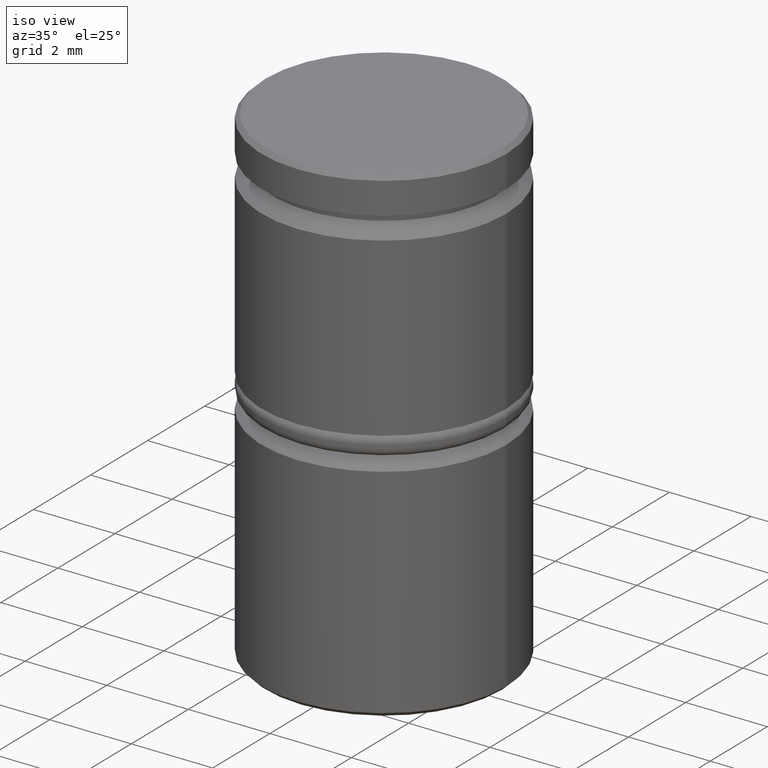
[diagram: clean part render]
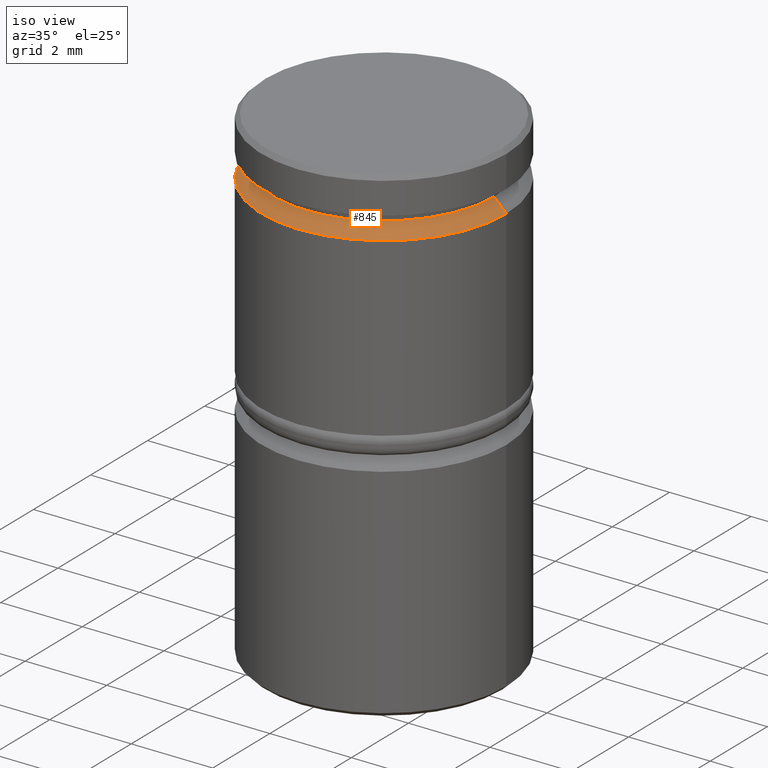
[diagram: same view with one face highlighted and labeled with its STEP entity id]
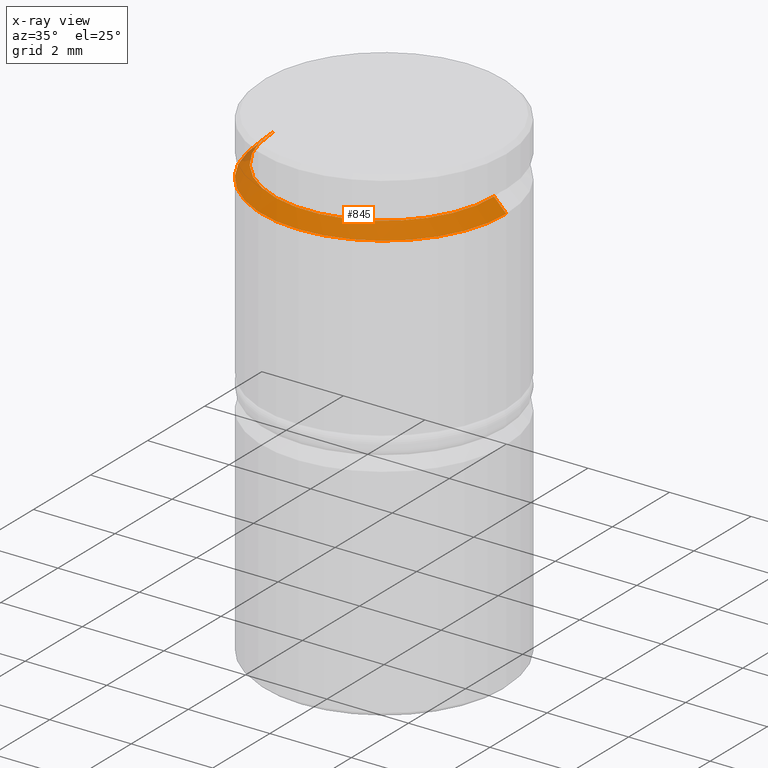
[diagram: x-ray of the same camera — body ghosted, the highlighted face saturated]
A machine part, iso view. The second image highlights one B-rep face of the part: STEP entity #845.
The next image is the same camera in x-ray: the body ghosted, the highlighted face saturated — about 2% of this face is hidden behind the body in this view.
In plain terms, the highlighted conical surface has half-angle 45 deg.
Its self-contained STEP definition (entity closure, byte-faithful):
#62 = CARTESIAN_POINT ( 'NONE',  ( -2.700000000000005063, 0.000000000000000000, -1.125000000000000222 ) ) ;
#99 = FACE_OUTER_BOUND ( 'NONE', #1080, .T. ) ;
#101 = DIRECTION ( 'NONE',  ( 0.000000000000000000, 0.000000000000000000, -1.000000000000000000 ) ) ;
#135 = LINE ( 'NONE', #62, #799 ) ;
#145 = AXIS2_PLACEMENT_3D ( 'NONE', #548, #101, #746 ) ;
#163 = DIRECTION ( 'NONE',  ( -1.000000000000000000, 0.000000000000000000, 0.000000000000000000 ) ) ;
#177 = CARTESIAN_POINT ( 'NONE',  ( 0.000000000000000000, 0.000000000000000000, -1.125000000000000222 ) ) ;
#218 = CARTESIAN_POINT ( 'NONE',  ( 0.000000000000000000, 0.000000000000000000, -1.125000000000000222 ) ) ;
#220 = CARTESIAN_POINT ( 'NONE',  ( 3.000000000000000000, 0.000000000000000000, -1.424999999999995381 ) ) ;
#223 = ORIENTED_EDGE ( 'NONE', *, *, #985, .T. ) ;
#236 = CIRCLE ( 'NONE', #145, 3.000000000000000000 ) ;
#245 = DIRECTION ( 'NONE',  ( 0.7071067811865474617, 8.659560562354932858E-17, -0.7071067811865474617 ) ) ;
#315 = VERTEX_POINT ( 'NONE', #220 ) ;
#316 = DIRECTION ( 'NONE',  ( -0.7071067811865474617, 0.000000000000000000, -0.7071067811865474617 ) ) ;
#323 = CARTESIAN_POINT ( 'NONE',  ( 2.700000000000005063, 3.306546357697859650E-16, -1.125000000000000222 ) ) ;
#440 = AXIS2_PLACEMENT_3D ( 'NONE', #177, #650, #163 ) ;
#454 = ORIENTED_EDGE ( 'NONE', *, *, #611, .F. ) ;
#480 = CARTESIAN_POINT ( 'NONE',  ( 2.700000000000000178, 0.000000000000000000, -1.125000000000000222 ) ) ;
#494 = VERTEX_POINT ( 'NONE', #890 ) ;
#516 = LINE ( 'NONE', #323, #819 ) ;
#518 = CARTESIAN_POINT ( 'NONE',  ( -3.000000000000000000, 3.673940397442059868E-16, -1.424999999999995381 ) ) ;
#541 = VERTEX_POINT ( 'NONE', #518 ) ;
#548 = CARTESIAN_POINT ( 'NONE',  ( 0.000000000000000000, 0.000000000000000000, -1.424999999999995381 ) ) ;
#590 = DIRECTION ( 'NONE',  ( 1.000000000000000000, 0.000000000000000000, 0.000000000000000000 ) ) ;
#611 = EDGE_CURVE ( 'NONE', #315, #541, #236, .T. ) ;
#650 = DIRECTION ( 'NONE',  ( 0.000000000000000000, 0.000000000000000000, -1.000000000000000000 ) ) ;
#661 = DIRECTION ( 'NONE',  ( -0.000000000000000000, -0.000000000000000000, 1.000000000000000000 ) ) ;
#671 = AXIS2_PLACEMENT_3D ( 'NONE', #218, #661, #590 ) ;
#735 = VERTEX_POINT ( 'NONE', #480 ) ;
#746 = DIRECTION ( 'NONE',  ( 1.000000000000000000, 0.000000000000000000, 0.000000000000000000 ) ) ;
#765 = CONICAL_SURFACE ( 'NONE', #440, 2.700000000000005063, 0.7853981633974482790 ) ;
#781 = CIRCLE ( 'NONE', #671, 2.700000000000000178 ) ;
#799 = VECTOR ( 'NONE', #316, 1000.000000000000114 ) ;
#819 = VECTOR ( 'NONE', #245, 1000.000000000000114 ) ;
#845 = ADVANCED_FACE ( 'NONE', ( #99 ), #765, .T. ) ;
#888 = EDGE_CURVE ( 'NONE', #494, #735, #781, .T. ) ;
#890 = CARTESIAN_POINT ( 'NONE',  ( -2.700000000000000178, 3.306546357697853733E-16, -1.125000000000000222 ) ) ;
#926 = ORIENTED_EDGE ( 'NONE', *, *, #888, .F. ) ;
#985 = EDGE_CURVE ( 'NONE', #494, #541, #135, .T. ) ;
#1073 = EDGE_CURVE ( 'NONE', #735, #315, #516, .T. ) ;
#1080 = EDGE_LOOP ( 'NONE', ( #1166, #926, #223, #454 ) ) ;
#1166 = ORIENTED_EDGE ( 'NONE', *, *, #1073, .F. ) ;